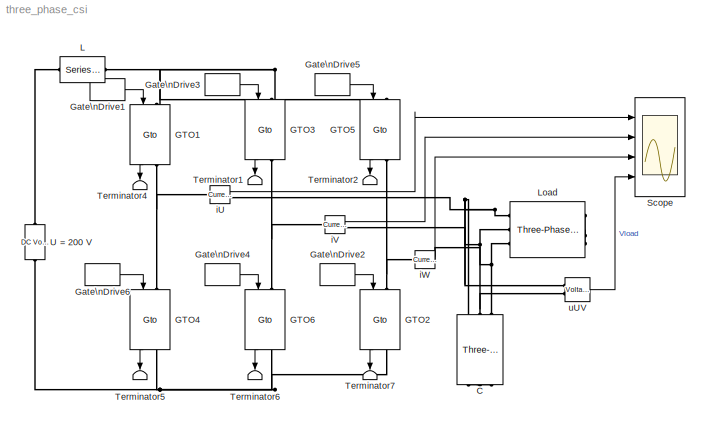
MODEL three_phase_csi
KIND model
BLOCK [Reference] C  REF=powerlib/Elements/Three-Phase\nSeries RLC Branch
  AttributesFormatString = \\n
  Capacitance = 1e-4
  Inductance = 0
  LConnTagsString = A|B|C
  LeftPortType = p1
  Measurements = None
  PhysicalDomain = powersysdomain
  Ports = [0, 0, 0, 0, 0, 3, 3]
  RConnTagsString = A|B|C
  Resistance = 0
  RightPortType = p1
  SourceBlock = powerlib/Elements/Three-Phase\nSeries RLC Branch
  SourceType = Three-Phase Series RLC Branch
  SubClassName = unknown
BLOCK [Reference] GTO1  REF=powerlib/Power\nElectronics/Gto
  AttributesFormatString = \\n
  Cs = 1e-6
  IC = 0
  Lon = 1e-6
  Measurements = on
  Ports = [1, 1, 0, 0, 0, 1, 1]
  Ron = 0.01
  Rs = 100
  ShowPortLabels = on
  SourceBlock = powerlib/Power\nElectronics/Gto
  SourceType = Gto
  Tf = 10e-6
  Tt = 20e-6
  Vf = 1
BLOCK [Reference] GTO2  REF=powerlib/Power\nElectronics/Gto
  AttributesFormatString = \\n
  Cs = 1e-6
  IC = 0
  Lon = 1e-6
  Measurements = on
  Ports = [1, 1, 0, 0, 0, 1, 1]
  Ron = 0.01
  Rs = 100
  ShowPortLabels = on
  SourceBlock = powerlib/Power\nElectronics/Gto
  SourceType = Gto
  Tf = 10e-6
  Tt = 20e-6
  Vf = 1
BLOCK [Reference] GTO3  REF=powerlib/Power\nElectronics/Gto
  AttributesFormatString = \\n
  Cs = 1e-6
  IC = 0
  Lon = 1e-6
  Measurements = on
  Ports = [1, 1, 0, 0, 0, 1, 1]
  Ron = 0.01
  Rs = 100
  ShowPortLabels = on
  SourceBlock = powerlib/Power\nElectronics/Gto
  SourceType = Gto
  Tf = 10e-6
  Tt = 20e-6
  Vf = 1
BLOCK [Reference] GTO4  REF=powerlib/Power\nElectronics/Gto
  AttributesFormatString = \\n
  Cs = 1e-6
  IC = 0
  Lon = 1e-6
  Measurements = on
  Ports = [1, 1, 0, 0, 0, 1, 1]
  Ron = 0.01
  Rs = 100
  ShowPortLabels = on
  SourceBlock = powerlib/Power\nElectronics/Gto
  SourceType = Gto
  Tf = 10e-6
  Tt = 20e-6
  Vf = 1
BLOCK [Reference] GTO5  REF=powerlib/Power\nElectronics/Gto
  AttributesFormatString = \\n
  Cs = 1e-6
  IC = 0
  Lon = 1e-6
  Measurements = on
  Ports = [1, 1, 0, 0, 0, 1, 1]
  Ron = 0.01
  Rs = 100
  ShowPortLabels = on
  SourceBlock = powerlib/Power\nElectronics/Gto
  SourceType = Gto
  Tf = 10e-6
  Tt = 20e-6
  Vf = 1
BLOCK [Reference] GTO6  REF=powerlib/Power\nElectronics/Gto
  AttributesFormatString = \\n
  Cs = 1e-6
  IC = 0
  Lon = 1e-6
  Measurements = on
  Ports = [1, 1, 0, 0, 0, 1, 1]
  Ron = 0.01
  Rs = 100
  ShowPortLabels = on
  SourceBlock = powerlib/Power\nElectronics/Gto
  SourceType = Gto
  Tf = 10e-6
  Tt = 20e-6
  Vf = 1
BLOCK [DiscretePulseGenerator] Gate\nDrive1
  Period = 0.02
  Ports = [0, 1]
  PulseType = Time based
  PulseWidth = 33.4
BLOCK [DiscretePulseGenerator] Gate\nDrive2
  Period = 0.02
  PhaseDelay = 0.00333
  Ports = [0, 1]
  PulseType = Time based
  PulseWidth = 33.4
BLOCK [DiscretePulseGenerator] Gate\nDrive3
  Period = 0.02
  PhaseDelay = 0.00667
  Ports = [0, 1]
  PulseType = Time based
  PulseWidth = 33.4
BLOCK [DiscretePulseGenerator] Gate\nDrive4
  Period = 0.02
  PhaseDelay = 0.01667
  Ports = [0, 1]
  PulseType = Time based
  PulseWidth = 33.4
BLOCK [DiscretePulseGenerator] Gate\nDrive5
  Period = 0.02
  PhaseDelay = 0.01333
  Ports = [0, 1]
  PulseType = Time based
  PulseWidth = 33.4
BLOCK [DiscretePulseGenerator] Gate\nDrive6
  Period = 0.02
  PhaseDelay = 0.01
  Ports = [0, 1]
  PulseType = Time based
  PulseWidth = 33.4
BLOCK [Reference] L  REF=powerlib/Elements/Series RLC Branch
  AttributesFormatString = \\n
  Capacitance = inf
  Inductance = 2e-02
  LConnTagsString = __new0
  LeftPortType = p1
  Measurements = None
  PhysicalDomain = powersysdomain
  Ports = [0, 0, 0, 0, 0, 1, 1]
  RConnTagsString = __new0
  Resistance = 0
  RightPortType = p1
  SourceBlock = powerlib/Elements/Series RLC Branch
  SourceType = Series RLC Branch
  SubClassName = unknown
BLOCK [Reference] Load  REF=powerlib/Elements/Three-Phase\nSeries RLC Branch
  AttributesFormatString = \\n
  Capacitance = inf
  Inductance = 5e-3
  LConnTagsString = A|B|C
  LeftPortType = p1
  Measurements = None
  PhysicalDomain = powersysdomain
  Ports = [0, 0, 0, 0, 0, 3, 3]
  RConnTagsString = A|B|C
  Resistance = 8
  RightPortType = p1
  SourceBlock = powerlib/Elements/Three-Phase\nSeries RLC Branch
  SourceType = Three-Phase Series RLC Branch
  SubClassName = unknown
BLOCK [Scope] Scope
  DataFormat = StructureWithTime
  NumInputPorts = 4
  Ports = [4]
  SaveName = ScopeData1
  TimeRange = 0.1
  YMax = 20~20~20~400
  YMin = -20~-20~-20~-400
BLOCK [Terminator] Terminator1
BLOCK [Terminator] Terminator2
BLOCK [Terminator] Terminator4
BLOCK [Terminator] Terminator5
BLOCK [Terminator] Terminator6
BLOCK [Terminator] Terminator7
BLOCK [Reference] U = 200 V  REF=powerlib/Electrical\nSources/DC Voltage Source
  Amplitude = 200
  AttributesFormatString = \\n
  Description = source block
  Measurements = None
  Ports = [0, 0, 0, 0, 0, 1, 1]
  ShowPortLabels = on
  SourceBlock = powerlib/Electrical\nSources/DC Voltage Source
  SourceType = DC Voltage Source
BLOCK [Reference] iU  REF=powerlib/Measurements/Current Measurement
  AttributesFormatString = \\n
  OutputType = Magnitude
  PSBequivalent = 0
  PhasorSimulation = off
  Ports = [0, 1, 0, 0, 0, 1, 1]
  ShowPortLabels = on
  SourceBlock = powerlib/Measurements/Current Measurement
  SourceType = Current Measurement
  Tag = PoWeRsYsTeMmEaSuReMeNt
BLOCK [Reference] iV  REF=powerlib/Measurements/Current Measurement
  AttributesFormatString = \\n
  OutputType = Magnitude
  PSBequivalent = 0
  PhasorSimulation = off
  Ports = [0, 1, 0, 0, 0, 1, 1]
  ShowPortLabels = on
  SourceBlock = powerlib/Measurements/Current Measurement
  SourceType = Current Measurement
  Tag = PoWeRsYsTeMmEaSuReMeNt
BLOCK [Reference] iW  REF=powerlib/Measurements/Current Measurement
  AttributesFormatString = \\n
  OutputType = Magnitude
  PSBequivalent = 0
  PhasorSimulation = off
  Ports = [0, 1, 0, 0, 0, 1, 1]
  ShowPortLabels = on
  SourceBlock = powerlib/Measurements/Current Measurement
  SourceType = Current Measurement
  Tag = PoWeRsYsTeMmEaSuReMeNt
BLOCK [Reference] uUV  REF=powerlib/Measurements/Voltage Measurement
  AttributesFormatString = \\n
  OutputType = Magnitude
  PSBequivalent = 0
  PhasorSimulation = off
  Ports = [0, 1, 0, 0, 0, 2]
  ShowPortLabels = on
  SourceBlock = powerlib/Measurements/Voltage Measurement
  SourceType = Voltage Measurement
  Tag = PoWeRsYsTeMmEaSuReMeNt
LINE GTO1:1 -> Terminator4:1
LINE GTO2:1 -> Terminator7:1
LINE GTO3:1 -> Terminator1:1
LINE GTO4:1 -> Terminator5:1
LINE GTO5:1 -> Terminator2:1
LINE GTO6:1 -> Terminator6:1
LINE Gate\nDrive1:1 -> GTO1:1
LINE Gate\nDrive2:1 -> GTO2:1
LINE Gate\nDrive3:1 -> GTO3:1
LINE Gate\nDrive4:1 -> GTO6:1
LINE Gate\nDrive5:1 -> GTO5:1
LINE Gate\nDrive6:1 -> GTO4:1
LINE iU:1 -> Scope:1
LINE iV:1 -> Scope:2
LINE iW:1 -> Scope:3
LINE uUV:1 -> Scope:4
PNET net1: C:LConn1 -- C:LConn2 -- C:LConn3
PNET net2: C:RConn1 -- Load:LConn1 -- iU:RConn1 -- uUV:LConn1
PNET net3: C:RConn2 -- Load:LConn2 -- iV:RConn1 -- uUV:LConn2
PNET net4: C:RConn3 -- Load:LConn3 -- iW:RConn1
PNET net5: GTO1:LConn1 -- GTO3:LConn1 -- GTO5:LConn1 -- L:LConn1
PNET net6: GTO1:RConn1 -- GTO4:LConn1 -- iU:LConn1
PNET net7: GTO2:LConn1 -- GTO5:RConn1 -- iW:LConn1
PNET net8: GTO2:RConn1 -- GTO4:RConn1 -- GTO6:RConn1 -- U = 200 V:LConn1
PNET net9: GTO3:RConn1 -- GTO6:LConn1 -- iV:LConn1
PLINE L:RConn1 -- U = 200 V:RConn1
PNET net10: Load:RConn1 -- Load:RConn2 -- Load:RConn3
note: PNET lines group multi-terminal physical nets as a canonical sorted terminal list (undirected conserving connections); 2-terminal nets keep the pairwise PLINE form
